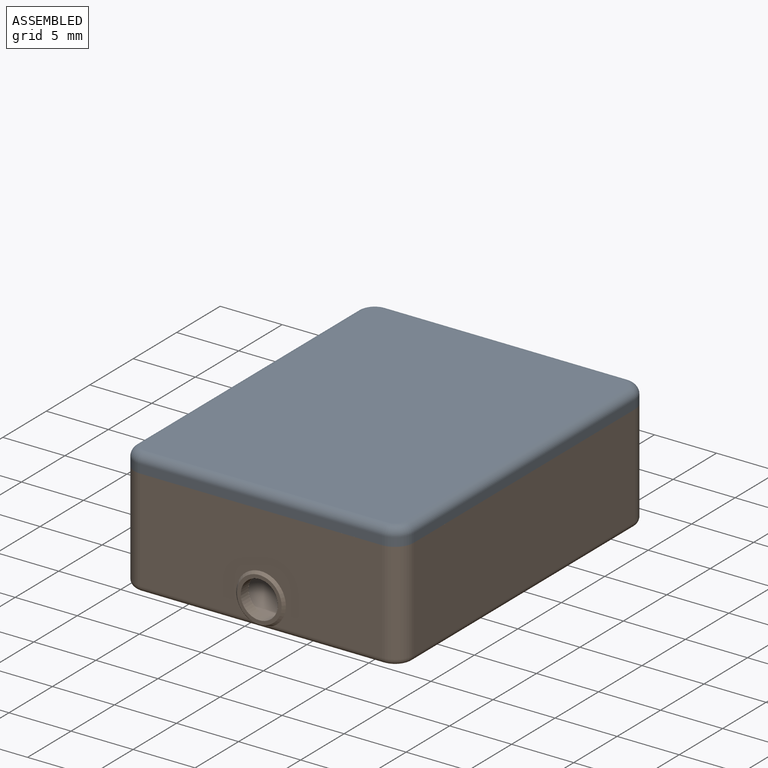
[diagram: assembled view]
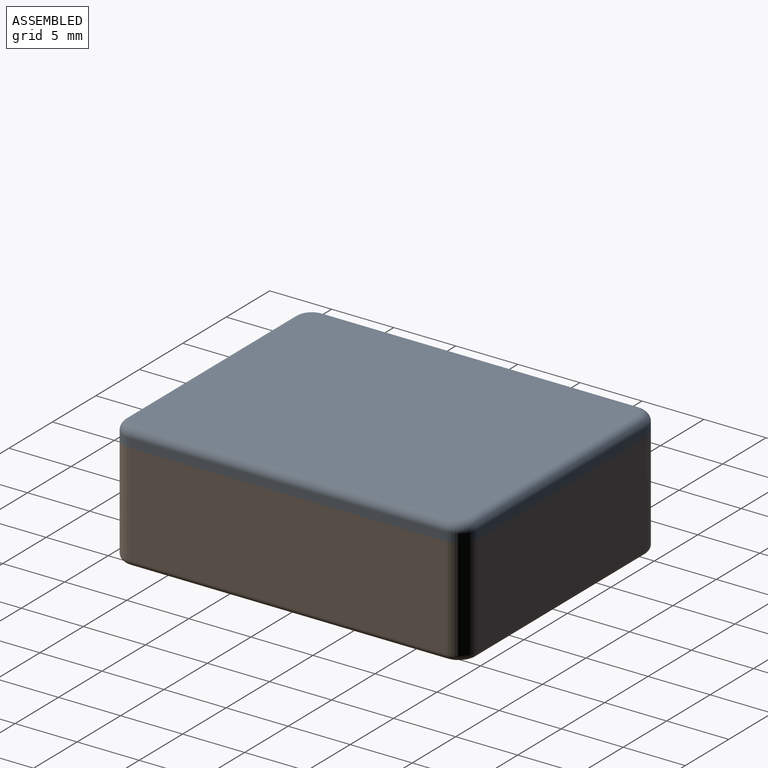
[diagram: assembled view, second angle]
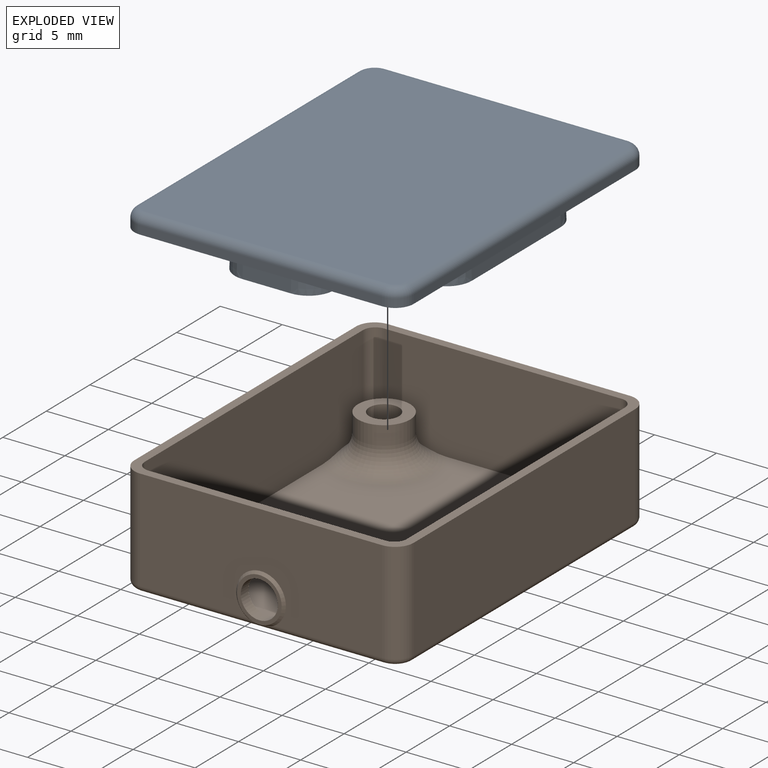
[diagram: exploded view]
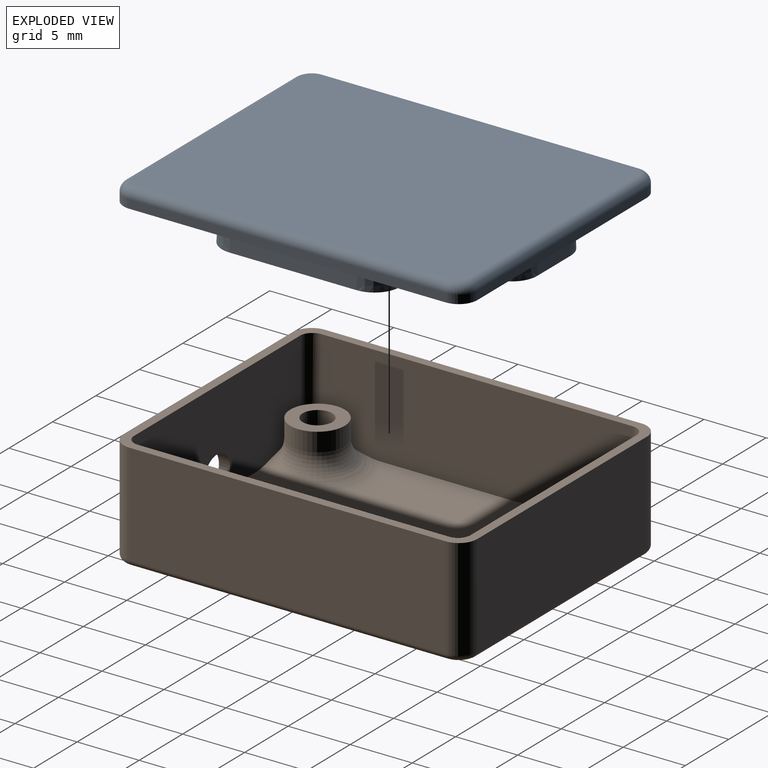
[diagram: exploded view, second angle]
ASSEMBLY  parts=2 mates=3
PART A: 40 faces, bbox 22.7x28.7x2.8 mm
  f0: plane 10.24x1.4mm, normal (1,0,-0.03), area 14.3mm2, adj f4,f13,f32,f36
  f1: plane 3.89x1.4mm, normal (0,1,-0.03), area 5.5mm2, adj f13,f15,f37,f38
  f2: plane 10.24x1.4mm, normal (-1,0,-0.03), area 14.3mm2, adj f4,f13,f35,f39
  f3: plane 3.84x1.4mm, normal (0,-1,-0.03), area 5.4mm2, adj f4,f13,f33,f34
  f4: plane 21.78x21.2mm, normal (0,0,1), area 284mm2, adj f0,f2,f3,f16,f17,f18,f19,f20
  f5: plane 25.5x0.7mm, normal (1,0,0), area 17.9mm2, adj f6,f12,f13,f28
  f6: cylinder r=1.5mm len=1.5mm, axis (0,0,-1), area 1.6mm2, adj f5,f7,f13,f26
  f7: plane 19.5x0.7mm, normal (0,1,0), area 13.7mm2, adj f6,f8,f13,f24
  f8: cylinder r=1.5mm len=1.5mm, axis (0,0,-1), area 1.6mm2, adj f7,f9,f13,f25
  f9: plane 25.5x0.7mm, normal (-1,0,0), area 17.9mm2, adj f8,f10,f13,f27
  f10: cylinder r=1.5mm len=1.5mm, axis (0,0,-1), area 1.6mm2, adj f9,f11,f13,f29
  f11: plane 19.5x0.7mm, normal (0,-1,0), area 13.7mm2, adj f10,f12,f13,f31
  f12: cylinder r=1.5mm len=1.5mm, axis (0,0,-1), area 1.6mm2, adj f5,f11,f13,f30
  f13: plane 28.5x22.5mm, normal (0,0,1), area 344.5mm2, adj f0,f1,f2,f3,f5,f6,f7,f8
  f14: plane 27.1x21.1mm, normal (0,0,-1), area 571.3mm2, adj f24,f25,f26,f27,f28,f29,f30,f31
  f15: plane 7.99x2.05mm, normal (0,0,1), area 14.6mm2, adj f1,f21,f37,f38
  f16: cone r=3.75mm half-angle=2deg, axis (0,0,-1), area 4.9mm2, adj f4,f13,f17,f39
  f17: plane 8.18x1.4mm, normal (1,0,0), area 11.4mm2, adj f4,f13,f16,f18
  f18: plane 10x1.4mm, normal (0,1,0), area 14mm2, adj f4,f13,f17,f19
  f19: plane 8.18x1.4mm, normal (-1,0,0), area 11.4mm2, adj f4,f13,f18,f20
  f20: cone r=3.75mm half-angle=2deg, axis (0,0,-1), area 4.9mm2, adj f4,f13,f19,f36
  f21: plane 7.99x1.4mm, normal (0,-1,0), area 11.1mm2, adj f13,f15,f37,f38
  f22: cone r=3.75mm half-angle=2deg, axis (0,0,-1), area 9.7mm2, adj f4,f13,f32,f33
  f23: cone r=3.75mm half-angle=2deg, axis (0,0,-1), area 9.7mm2, adj f4,f13,f34,f35
  f24: cylinder r=0.7mm len=19.5mm, axis (-1,0,0), area 21.4mm2, adj f7,f14,f25,f26
  f25: torus R=0.8mm, axis (0,0,1), area 2.2mm2, adj f8,f14,f24,f27
  f26: torus R=0.8mm, axis (0,0,1), area 2.2mm2, adj f6,f14,f24,f28
  f27: cylinder r=0.7mm len=25.5mm, axis (0,-1,0), area 28mm2, adj f9,f14,f25,f29
  f28: cylinder r=0.7mm len=25.5mm, axis (0,1,0), area 28mm2, adj f5,f14,f26,f30
  f29: torus R=0.8mm, axis (0,0,1), area 2.2mm2, adj f10,f14,f27,f31
  f30: torus R=0.8mm, axis (0,0,1), area 2.2mm2, adj f12,f14,f28,f31
  f31: cylinder r=0.7mm len=19.5mm, axis (1,0,0), area 21.4mm2, adj f11,f14,f29,f30
  f32: cone r=2mm half-angle=2deg, axis (0,0,1), area 4.9mm2, adj f0,f4,f13,f22
  f33: cone r=2mm half-angle=2deg, axis (0,0,1), area 4.8mm2, adj f3,f4,f13,f22
  f34: cone r=2mm half-angle=2deg, axis (0,0,1), area 4.8mm2, adj f3,f4,f13,f23
  f35: cone r=2mm half-angle=2deg, axis (0,0,1), area 4.9mm2, adj f2,f4,f13,f23
  f36: cone r=2mm half-angle=2deg, axis (0,0,1), area 4.9mm2, adj f0,f4,f13,f20
  f37: cone r=2mm half-angle=2deg, axis (0,0,1), area 4.5mm2, adj f1,f13,f15,f21
  f38: cone r=2mm half-angle=2deg, axis (0,0,1), area 4.5mm2, adj f1,f13,f15,f21
  f39: cone r=2mm half-angle=2deg, axis (0,0,1), area 4.9mm2, adj f2,f4,f13,f16
PART B: 48 faces, bbox 28.1x34.5x9.4 mm
  f0: plane 19.5x8.2mm, normal (0,-1,0), area 147.8mm2, adj f7,f12,f22,f43,f47
  f1: plane 27.1x21.1mm, normal (0,0,1), area 397.8mm2, adj f15,f17,f19,f21,f32,f33,f34,f35
  f2: plane 25.5x8.2mm, normal (1,0,0), area 209.1mm2, adj f3,f12,f22,f40
  f3: cylinder r=1.5mm len=8.2mm, axis (0,0,-1), area 19.3mm2, adj f2,f4,f22,f38
  f4: plane 19.5x8.2mm, normal (0,1,0), area 159.9mm2, adj f3,f5,f22,f36
  f5: cylinder r=1.5mm len=8.2mm, axis (0,0,-1), area 19.3mm2, adj f4,f6,f22,f37
  f6: plane 25.5x8.2mm, normal (-1,0,0), area 209.1mm2, adj f5,f7,f22,f39
  f7: cylinder r=1.5mm len=8.2mm, axis (0,0,-1), area 19.3mm2, adj f0,f6,f22,f41
  f8: cylinder r=1.2mm len=4.2mm, axis (0,0,-1), area 31.7mm2, adj f13,f24
  f9: cylinder r=1.2mm len=4.2mm, axis (0,0,-1), area 31.7mm2, adj f13,f26
  f10: cylinder r=1.2mm len=4.2mm, axis (0,0,-1), area 31.7mm2, adj f13,f28
  f11: cylinder r=1.2mm len=4.2mm, axis (0,0,-1), area 31.7mm2, adj f13,f30
  f12: cylinder r=1.5mm len=8.2mm, axis (0,0,-1), area 19.3mm2, adj f0,f2,f22,f42
  f13: plane 27.5x21.5mm, normal (0,0,-1), area 572.3mm2, adj f8,f9,f10,f11,f36,f37,f38,f39
  f14: cylinder r=1mm len=7.84mm, axis (0,0,-1), area 12.3mm2, adj f15,f21,f22,f34
  f15: plane 25.82x8.72mm, normal (-1,0,0), area 198.3mm2, adj f1,f14,f16,f22,f33,f34
  f16: cylinder r=1mm len=7.84mm, axis (0,0,-1), area 12.3mm2, adj f15,f17,f22,f33
  f17: plane 19.1x8mm, normal (0,1,0), area 142.2mm2, adj f1,f16,f18,f22,f31,f32,f33
  f18: cylinder r=1mm len=7.84mm, axis (0,0,-1), area 12.3mm2, adj f17,f19,f22,f32
  f19: plane 25.1x8mm, normal (1,0,0), area 198.5mm2, adj f1,f18,f20,f22,f32,f35
  f20: cylinder r=1mm len=7.88mm, axis (0,0,-1), area 12.4mm2, adj f19,f21,f22,f35
  f21: plane 19.1x8mm, normal (0,-1,0), area 149.5mm2, adj f1,f14,f20,f22,f34,f35
  f22: plane 28.5x22.5mm, normal (0,0,1), area 68.4mm2, adj f0,f2,f3,f4,f5,f6,f7,f12
  f23: cylinder r=2.1mm len=4.2mm, axis (0,0,-1), area 19.8mm2, adj f24,f35
  f24: plane 4.2x4.2mm, normal (0,0,1), area 9.3mm2, adj f8,f23
  f25: cylinder r=2.2mm len=4.4mm, axis (0,0,-1), area 20.7mm2, adj f26,f34
  f26: plane 4.4x4.4mm, normal (0,0,1), area 10.7mm2, adj f9,f25
  f27: cylinder r=2.2mm len=4.4mm, axis (0,0,-1), area 20.7mm2, adj f28,f33
  f28: plane 4.4x4.4mm, normal (0,0,1), area 10.7mm2, adj f10,f27
  f29: cylinder r=2.2mm len=4.4mm, axis (0,0,-1), area 20.7mm2, adj f30,f32
  f30: plane 4.4x4.4mm, normal (0,0,1), area 10.7mm2, adj f11,f29
  f31: cylinder r=1.5mm len=3mm, axis (0,-1,0), area 8.5mm2, adj f17,f45
  f32: torus R=4.2mm, axis (0,0,1), area 45.2mm2, adj f1,f17,f18,f19,f29
  f33: torus R=4.2mm, axis (0,0,1), area 46.1mm2, adj f1,f15,f16,f17,f27
  f34: torus R=4.2mm, axis (0,0,1), area 46.1mm2, adj f1,f14,f15,f21,f25
  f35: torus R=4.1mm, axis (0,0,1), area 44.8mm2, adj f1,f19,f20,f21,f23
  f36: cylinder r=0.5mm len=19.5mm, axis (-1,0,0), area 15.3mm2, adj f4,f13,f37,f38
  f37: torus R=1mm, axis (0,0,1), area 1.6mm2, adj f5,f13,f36,f39
  f38: torus R=1mm, axis (0,0,1), area 1.6mm2, adj f3,f13,f36,f40
  f39: cylinder r=0.5mm len=25.5mm, axis (0,-1,0), area 20mm2, adj f6,f13,f37,f41
  f40: cylinder r=0.5mm len=25.5mm, axis (0,1,0), area 20mm2, adj f2,f13,f38,f42
  f41: torus R=1mm, axis (0,0,1), area 1.6mm2, adj f7,f13,f39,f43
  f42: torus R=1mm, axis (0,0,1), area 1.6mm2, adj f12,f13,f40,f43
  f43: cylinder r=0.5mm len=19.5mm, axis (1,0,0), area 15mm2, adj f0,f13,f41,f42,f46
  f44: cylinder r=1.8mm len=1.9mm, axis (0,1,0), area 0mm2, adj f45,f46
  f45: plane 3.6x3.6mm, normal (0,-1,0), area 3.1mm2, adj f31,f44,f47
  f46: bspline ~2.2x0.45mm, area 0.5mm2, adj f43,f44,f47
  f47: cone r=1.8mm half-angle=45deg, axis (0,1,0), area 2.8mm2, adj f0,f45,f46
PLACE A rot(axis=(1,0,0),180deg) t=(-4.93,-1.12,8.14)mm
PLACE B t=(-4.93,-1.12,-1.96)mm fixed
MATE planar A.f23 <-> B.f22  axis (0,0,-1) through (-12.55,9.67,6.74)mm
MATE planar B.f2 <-> A.f5  axis (1,0,0) through (6.32,-1.12,2.64)mm
MATE planar A.f7 <-> B.f0  axis (0,-1,0) through (-4.93,-15.37,7.09)mm
